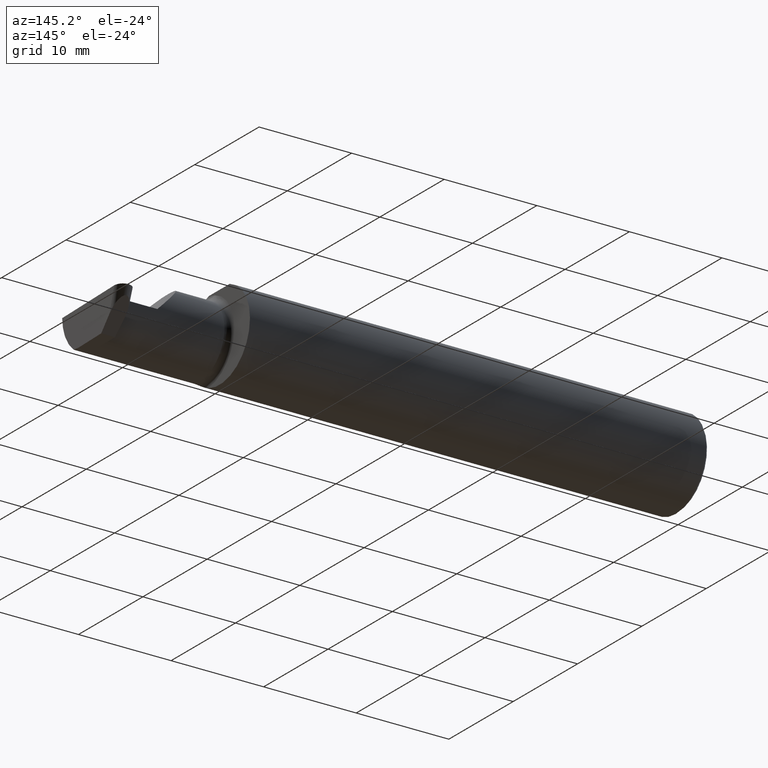
[diagram: clean part render]
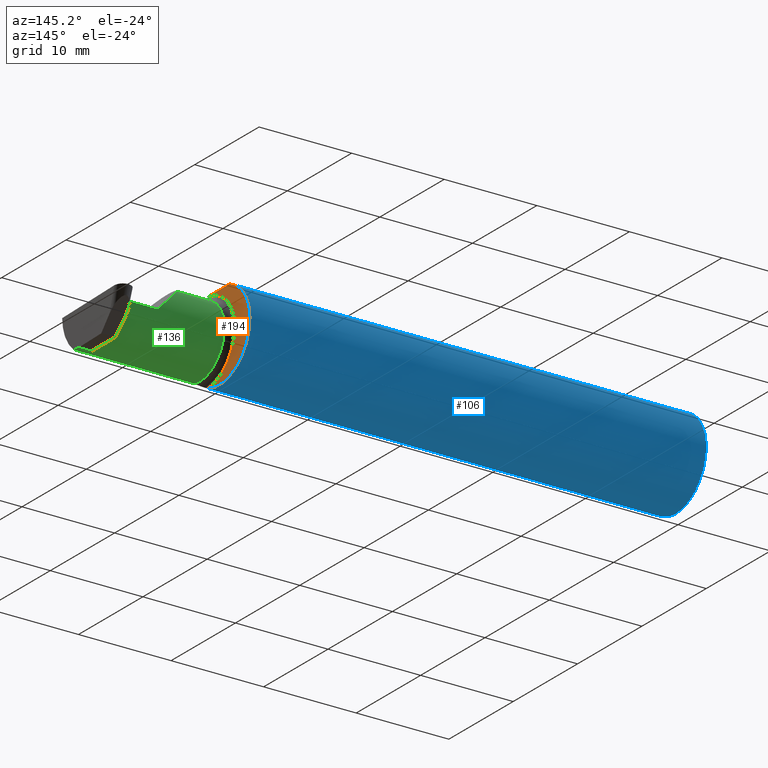
[diagram: same view with three faces highlighted in distinct colors, each labeled with its STEP entity id]
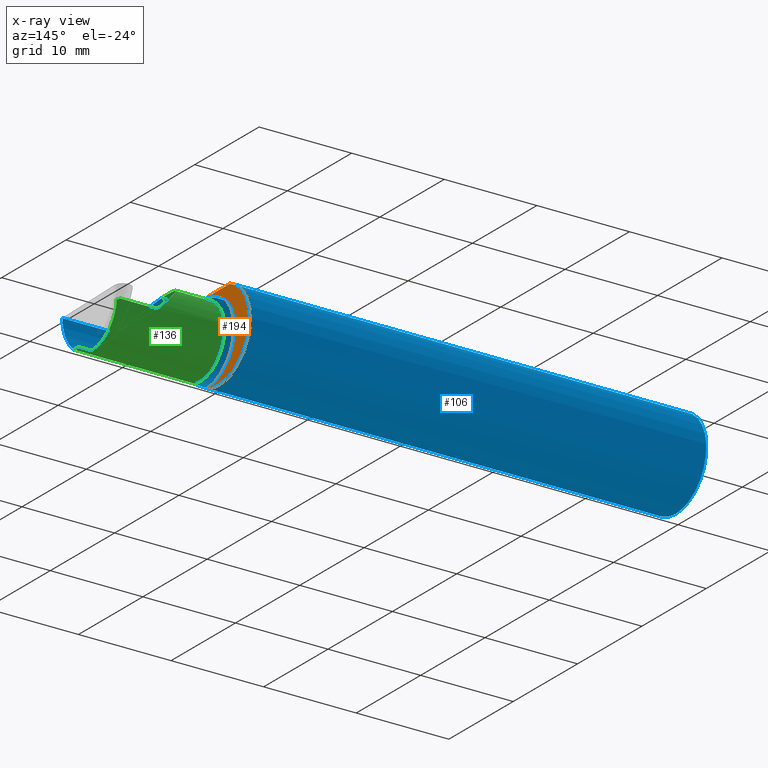
[diagram: x-ray of the same camera — body ghosted, the three highlighted faces saturated]
A machine part, auxiliary view with three faces highlighted in distinct colors.
The next image is the same camera in x-ray (body ghosted, the three faces saturated) — at least one of them is partly hidden behind the body in this view.
Their STEP definitions:

[orange] entity #194 — the highlighted planar face has unit normal (1, 0, 0).
#8 = AXIS2_PLACEMENT_3D ( 'NONE', #61, #68, #385 ) ;
#40 = DIRECTION ( 'NONE',  ( 1.000000000000000000, 3.558239494867688555E-17, 0.000000000000000000 ) ) ;
#47 = ORIENTED_EDGE ( 'NONE', *, *, #447, .T. ) ;
#61 = CARTESIAN_POINT ( 'NONE',  ( 1.949999999999999956, 0.1873499999999999055, 0.000000000000000000 ) ) ;
#64 = CARTESIAN_POINT ( 'NONE',  ( 1.949999999999999956, -0.06325108694718283020, 0.1763499999999999235 ) ) ;
#68 = DIRECTION ( 'NONE',  ( 1.000000000000000000, 3.558239494867688555E-17, 0.000000000000000000 ) ) ;
#76 = VERTEX_POINT ( 'NONE', #531 ) ;
#133 = AXIS2_PLACEMENT_3D ( 'NONE', #509, #225, #445 ) ;
#150 = CARTESIAN_POINT ( 'NONE',  ( 1.949999999999999956, 0.000000000000000000, 0.000000000000000000 ) ) ;
#153 = DIRECTION ( 'NONE',  ( 0.000000000000000000, 1.000000000000000000, 0.000000000000000000 ) ) ;
#168 = CIRCLE ( 'NONE', #481, 0.1873499999999999888 ) ;
#173 = VERTEX_POINT ( 'NONE', #64 ) ;
#194 = ADVANCED_FACE ( 'NONE', ( #549 ), #671, .T. ) ;
#195 = DIRECTION ( 'NONE',  ( -3.558239494867688555E-17, 1.000000000000000000, 0.000000000000000000 ) ) ;
#224 = DIRECTION ( 'NONE',  ( 1.000000000000000000, 3.558239494867688555E-17, 0.000000000000000000 ) ) ;
#225 = DIRECTION ( 'NONE',  ( -1.000000000000000000, -3.558239494867688555E-17, -0.000000000000000000 ) ) ;
#237 = AXIS2_PLACEMENT_3D ( 'NONE', #150, #40, #153 ) ;
#263 = EDGE_CURVE ( 'NONE', #76, #318, #446, .T. ) ;
#273 = VERTEX_POINT ( 'NONE', #451 ) ;
#297 = CARTESIAN_POINT ( 'NONE',  ( 1.949999999999999956, 0.1873499999999998222, 0.1763499999999999235 ) ) ;
#318 = VERTEX_POINT ( 'NONE', #571 ) ;
#347 = EDGE_CURVE ( 'NONE', #173, #273, #620, .T. ) ;
#385 = DIRECTION ( 'NONE',  ( -3.558239494867688555E-17, 1.000000000000000000, 0.000000000000000000 ) ) ;
#435 = VECTOR ( 'NONE', #195, 39.37007874015748143 ) ;
#445 = DIRECTION ( 'NONE',  ( 0.000000000000000000, -1.000000000000000000, 0.000000000000000000 ) ) ;
#446 = CIRCLE ( 'NONE', #133, 0.1749999999999999889 ) ;
#447 = EDGE_CURVE ( 'NONE', #173, #76, #551, .T. ) ;
#451 = CARTESIAN_POINT ( 'NONE',  ( 1.949999999999999956, 0.06325108694718235836, 0.1763499999999999235 ) ) ;
#462 = ORIENTED_EDGE ( 'NONE', *, *, #263, .T. ) ;
#481 = AXIS2_PLACEMENT_3D ( 'NONE', #497, #224, #701 ) ;
#497 = CARTESIAN_POINT ( 'NONE',  ( 1.949999999999999956, 0.000000000000000000, 0.000000000000000000 ) ) ;
#509 = CARTESIAN_POINT ( 'NONE',  ( 1.949999999999999956, -0.08335000000000000742, 0.000000000000000000 ) ) ;
#528 = EDGE_LOOP ( 'NONE', ( #666, #688, #47, #462 ) ) ;
#531 = CARTESIAN_POINT ( 'NONE',  ( 1.949999999999999956, -0.06851976604679065053, 0.1743704796142198643 ) ) ;
#549 = FACE_OUTER_BOUND ( 'NONE', #528, .T. ) ;
#551 = CIRCLE ( 'NONE', #237, 0.1873499999999999888 ) ;
#571 = CARTESIAN_POINT ( 'NONE',  ( 1.949999999999999956, -0.06851976604679065053, -0.1743704796142198643 ) ) ;
#620 = LINE ( 'NONE', #297, #435 ) ;
#660 = EDGE_CURVE ( 'NONE', #318, #273, #168, .T. ) ;
#666 = ORIENTED_EDGE ( 'NONE', *, *, #660, .T. ) ;
#671 = PLANE ( 'NONE',  #8 ) ;
#688 = ORIENTED_EDGE ( 'NONE', *, *, #347, .F. ) ;
#701 = DIRECTION ( 'NONE',  ( 0.000000000000000000, 1.000000000000000000, 0.000000000000000000 ) ) ;

[blue] entity #106 — the highlighted cylindrical surface (partial cylindrical patch) has radius 4.7587 mm, axis along (-1, -0, -0).
#7 = ORIENTED_EDGE ( 'NONE', *, *, #396, .T. ) ;
#22 = ORIENTED_EDGE ( 'NONE', *, *, #447, .F. ) ;
#35 = CARTESIAN_POINT ( 'NONE',  ( 0.000000000000000000, 0.06325108694718235836, 0.1763499999999999235 ) ) ;
#36 = CARTESIAN_POINT ( 'NONE',  ( 1.972161949849307927, -0.1172600179964061184, 0.1461167706989260351 ) ) ;
#37 = CARTESIAN_POINT ( 'NONE',  ( 2.260000000000000231, -0.1873499999999999888, 2.939152317953647352E-17 ) ) ;
#38 = CARTESIAN_POINT ( 'NONE',  ( 1.950353553376444671, -0.07868116735658677030, 0.1701139256562800572 ) ) ;
#40 = DIRECTION ( 'NONE',  ( 1.000000000000000000, 3.558239494867688555E-17, 0.000000000000000000 ) ) ;
#42 = ORIENTED_EDGE ( 'NONE', *, *, #580, .F. ) ;
#54 = EDGE_CURVE ( 'NONE', #441, #572, #350, .T. ) ;
#62 = VERTEX_POINT ( 'NONE', #489 ) ;
#64 = CARTESIAN_POINT ( 'NONE',  ( 1.949999999999999956, -0.06325108694718283020, 0.1763499999999999235 ) ) ;
#74 = EDGE_CURVE ( 'NONE', #76, #550, #603, .T. ) ;
#76 = VERTEX_POINT ( 'NONE', #531 ) ;
#83 = ORIENTED_EDGE ( 'NONE', *, *, #490, .F. ) ;
#91 = CARTESIAN_POINT ( 'NONE',  ( 2.202422719999999945, -0.1172600179964006090, -0.1461167706989303927 ) ) ;
#92 = CARTESIAN_POINT ( 'NONE',  ( 0.000000000000000000, 0.000000000000000000, 0.000000000000000000 ) ) ;
#102 = CARTESIAN_POINT ( 'NONE',  ( 1.952960551809340917, -0.09317341542745735672, -0.1626248379125197208 ) ) ;
#103 = DIRECTION ( 'NONE',  ( 0.000000000000000000, 0.000000000000000000, 1.000000000000000000 ) ) ;
#106 = ADVANCED_FACE ( 'NONE', ( #432 ), #475, .T. ) ;
#107 = LINE ( 'NONE', #661, #315 ) ;
#112 = VECTOR ( 'NONE', #541, 39.37007874015748143 ) ;
#116 = CARTESIAN_POINT ( 'NONE',  ( 2.487246082891137355, -0.1873500000000000165, -0.05781030015605123640 ) ) ;
#121 = VERTEX_POINT ( 'NONE', #200 ) ;
#127 = DIRECTION ( 'NONE',  ( 0.000000000000000000, 0.000000000000000000, -1.000000000000000000 ) ) ;
#140 = CARTESIAN_POINT ( 'NONE',  ( 0.009999999999999346217, -0.06325108694718235836, 0.1763499999999999235 ) ) ;
#143 = VECTOR ( 'NONE', #418, 39.37007874015748143 ) ;
#150 = CARTESIAN_POINT ( 'NONE',  ( 1.949999999999999956, 0.000000000000000000, 0.000000000000000000 ) ) ;
#152 = ORIENTED_EDGE ( 'NONE', *, *, #74, .F. ) ;
#153 = DIRECTION ( 'NONE',  ( 0.000000000000000000, 1.000000000000000000, 0.000000000000000000 ) ) ;
#163 = VERTEX_POINT ( 'NONE', #306 ) ;
#164 = CARTESIAN_POINT ( 'NONE',  ( 2.488151344270815191, -0.1172600179964006090, -0.1461167706989303927 ) ) ;
#168 = CIRCLE ( 'NONE', #481, 0.1873499999999999888 ) ;
#173 = VERTEX_POINT ( 'NONE', #64 ) ;
#174 = DIRECTION ( 'NONE',  ( 1.000000000000000000, 0.000000000000000000, 0.000000000000000000 ) ) ;
#176 = B_SPLINE_CURVE_WITH_KNOTS ( 'NONE', 3,
 ( #691, #197, #372, #643, #250, #311, #361, #102, #593, #365, #260, #199 ),
 .UNSPECIFIED., .F., .F.,
 ( 4, 2, 2, 2, 2, 4 ),
 ( 1.967976973726874814E-07, 0.0002120314145722334794, 0.0004238660314470942339, 0.0008475352651968040335, 0.001271204498946513833, 0.001694873732696223524 ),
 .UNSPECIFIED. ) ;
#179 = EDGE_CURVE ( 'NONE', #441, #173, #107, .T. ) ;
#197 = CARTESIAN_POINT ( 'NONE',  ( 1.972174967710399685, -0.1172600179964005812, -0.1461167706989304482 ) ) ;
#199 = CARTESIAN_POINT ( 'NONE',  ( 1.949999999999999956, -0.06851976604679065053, -0.1743704796142198643 ) ) ;
#200 = CARTESIAN_POINT ( 'NONE',  ( 2.260000000000000231, -0.1873499999999999888, 2.939152317953647352E-17 ) ) ;
#203 = LINE ( 'NONE', #91, #293 ) ;
#206 = CARTESIAN_POINT ( 'NONE',  ( 2.150065971957464850, -0.1623470442677540371, 0.1099340280425340488 ) ) ;
#208 = ORIENTED_EDGE ( 'NONE', *, *, #54, .T. ) ;
#214 = CARTESIAN_POINT ( 'NONE',  ( 1.965004157323697376, -0.1137044537483316159, 0.1489098419202428691 ) ) ;
#215 = EDGE_LOOP ( 'NONE', ( #42, #700, #614, #230, #627, #152, #22, #484, #208, #7, #83, #371, #419 ) ) ;
#221 = VERTEX_POINT ( 'NONE', #282 ) ;
#224 = DIRECTION ( 'NONE',  ( 1.000000000000000000, 3.558239494867688555E-17, 0.000000000000000000 ) ) ;
#230 = ORIENTED_EDGE ( 'NONE', *, *, #545, .T. ) ;
#237 = AXIS2_PLACEMENT_3D ( 'NONE', #150, #40, #153 ) ;
#250 = CARTESIAN_POINT ( 'NONE',  ( 1.963203859946833552, -0.1120371980050636901, -0.1501764597936560142 ) ) ;
#253 = CARTESIAN_POINT ( 'NONE',  ( 2.113883229301068312, -0.1172600179964003175, 0.1461167706989304760 ) ) ;
#260 = CARTESIAN_POINT ( 'NONE',  ( 1.949999999999999512, -0.07368234487347190276, -0.1723418180300748115 ) ) ;
#262 = CARTESIAN_POINT ( 'NONE',  ( 1.974999999999999867, -0.1172600179964006506, 0.1461167706989304205 ) ) ;
#273 = VERTEX_POINT ( 'NONE', #451 ) ;
#274 = CARTESIAN_POINT ( 'NONE',  ( 2.487208827712860337, -0.1623470442677540926, -0.1099340280425339100 ) ) ;
#277 = LINE ( 'NONE', #380, #401 ) ;
#282 = CARTESIAN_POINT ( 'NONE',  ( 1.974999999999999867, -0.1172600179964006090, -0.1461167706989303927 ) ) ;
#293 = VECTOR ( 'NONE', #427, 39.37007874015748143 ) ;
#306 = CARTESIAN_POINT ( 'NONE',  ( 2.488151344270815191, -0.1172600179964006090, -0.1461167706989303927 ) ) ;
#311 = CARTESIAN_POINT ( 'NONE',  ( 1.958439486659306228, -0.1064616213911156600, -0.1542305641651501857 ) ) ;
#312 = CARTESIAN_POINT ( 'NONE',  ( 1.949999999999999956, -0.07367581953296704900, 0.1723443821957854338 ) ) ;
#315 = VECTOR ( 'NONE', #330, 39.37007874015748143 ) ;
#318 = VERTEX_POINT ( 'NONE', #571 ) ;
#330 = DIRECTION ( 'NONE',  ( 1.000000000000000000, 0.000000000000000000, 0.000000000000000000 ) ) ;
#350 = CIRCLE ( 'NONE', #705, 0.1873499999999999888 ) ;
#355 =( BOUNDED_CURVE ( )  B_SPLINE_CURVE ( 3, ( #164, #274, #116, #706 ),
 .UNSPECIFIED., .F., .T. ) 
 B_SPLINE_CURVE_WITH_KNOTS ( ( 4, 4 ),
 ( 5.852427379562161747, 6.746954780470609592 ),
 .UNSPECIFIED. ) 
 CURVE ( )  GEOMETRIC_REPRESENTATION_ITEM ( )  RATIONAL_B_SPLINE_CURVE ( ( 1.000000000000000000, 0.9344226172588802060, 0.9344226172588802060, 1.000000000000000000 ) ) 
 REPRESENTATION_ITEM ( '' )  );
#361 = CARTESIAN_POINT ( 'NONE',  ( 1.956304331342286984, -0.1022198306720689814, -0.1570962426853818594 ) ) ;
#365 = CARTESIAN_POINT ( 'NONE',  ( 1.950358271039143832, -0.07873626113568077400, -0.1700887912276895508 ) ) ;
#369 = CARTESIAN_POINT ( 'NONE',  ( 2.202189699843948301, -0.1873500000000000443, 0.05781030015605120170 ) ) ;
#371 = ORIENTED_EDGE ( 'NONE', *, *, #660, .F. ) ;
#372 = CARTESIAN_POINT ( 'NONE',  ( 1.969511795768554174, -0.1163687266324233971, -0.1468371510166789906 ) ) ;
#374 = DIRECTION ( 'NONE',  ( -1.000000000000000000, -0.000000000000000000, -0.000000000000000000 ) ) ;
#376 = LINE ( 'NONE', #35, #112 ) ;
#378 = CARTESIAN_POINT ( 'NONE',  ( 1.958475602106621194, -0.1064978748893405658, 0.1542035505680384166 ) ) ;
#380 = CARTESIAN_POINT ( 'NONE',  ( 2.202422719999999945, -0.1172600179964006090, 0.1461167706989303927 ) ) ;
#396 = EDGE_CURVE ( 'NONE', #572, #62, #704, .T. ) ;
#400 = AXIS2_PLACEMENT_3D ( 'NONE', #456, #174, #127 ) ;
#401 = VECTOR ( 'NONE', #609, 39.37007874015748143 ) ;
#418 = DIRECTION ( 'NONE',  ( -1.000000000000000000, -0.000000000000000000, -0.000000000000000000 ) ) ;
#419 = ORIENTED_EDGE ( 'NONE', *, *, #526, .F. ) ;
#424 = CARTESIAN_POINT ( 'NONE',  ( 1.949999999999999956, -0.06851976604679065053, 0.1743704796142198643 ) ) ;
#427 = DIRECTION ( 'NONE',  ( -1.000000000000000000, -3.558239494867688555E-17, -0.000000000000000000 ) ) ;
#428 = DIRECTION ( 'NONE',  ( 1.000000000000000000, 0.000000000000000000, 0.000000000000000000 ) ) ;
#432 = FACE_OUTER_BOUND ( 'NONE', #215, .T. ) ;
#438 = EDGE_CURVE ( 'NONE', #567, #121, #463, .T. ) ;
#441 = VERTEX_POINT ( 'NONE', #140 ) ;
#447 = EDGE_CURVE ( 'NONE', #173, #76, #551, .T. ) ;
#451 = CARTESIAN_POINT ( 'NONE',  ( 1.949999999999999956, 0.06325108694718235836, 0.1763499999999999235 ) ) ;
#456 = CARTESIAN_POINT ( 'NONE',  ( 0.009999999999999346217, 0.000000000000000000, 0.000000000000000000 ) ) ;
#463 = LINE ( 'NONE', #679, #143 ) ;
#474 = CARTESIAN_POINT ( 'NONE',  ( 2.488255780514392335, -0.1873499999999999888, 0.000000000000000000 ) ) ;
#475 = CYLINDRICAL_SURFACE ( 'NONE', #628, 0.1873499999999999888 ) ;
#477 = CARTESIAN_POINT ( 'NONE',  ( 1.969481469043492528, -0.1163560528186165510, 0.1468472430636323656 ) ) ;
#481 = AXIS2_PLACEMENT_3D ( 'NONE', #497, #224, #701 ) ;
#484 = ORIENTED_EDGE ( 'NONE', *, *, #179, .F. ) ;
#489 = CARTESIAN_POINT ( 'NONE',  ( 0.009999999999999346217, 0.06325108694718235836, 0.1763499999999999235 ) ) ;
#490 = EDGE_CURVE ( 'NONE', #273, #62, #376, .T. ) ;
#497 = CARTESIAN_POINT ( 'NONE',  ( 1.949999999999999956, 0.000000000000000000, 0.000000000000000000 ) ) ;
#526 = EDGE_CURVE ( 'NONE', #221, #318, #176, .T. ) ;
#531 = CARTESIAN_POINT ( 'NONE',  ( 1.949999999999999956, -0.06851976604679065053, 0.1743704796142198643 ) ) ;
#541 = DIRECTION ( 'NONE',  ( -1.000000000000000000, -0.000000000000000000, -0.000000000000000000 ) ) ;
#542 = DIRECTION ( 'NONE',  ( 0.000000000000000000, 0.000000000000000000, -1.000000000000000000 ) ) ;
#545 = EDGE_CURVE ( 'NONE', #121, #681, #625, .T. ) ;
#548 = CARTESIAN_POINT ( 'NONE',  ( 2.113883229301068312, -0.1172600179964003175, 0.1461167706989304760 ) ) ;
#550 = VERTEX_POINT ( 'NONE', #647 ) ;
#551 = CIRCLE ( 'NONE', #237, 0.1873499999999999888 ) ;
#567 = VERTEX_POINT ( 'NONE', #474 ) ;
#571 = CARTESIAN_POINT ( 'NONE',  ( 1.949999999999999956, -0.06851976604679065053, -0.1743704796142198643 ) ) ;
#572 = VERTEX_POINT ( 'NONE', #690 ) ;
#580 = EDGE_CURVE ( 'NONE', #163, #221, #203, .T. ) ;
#584 = CARTESIAN_POINT ( 'NONE',  ( 1.956287624083519416, -0.1021858045380144991, 0.1571187174372875306 ) ) ;
#593 = CARTESIAN_POINT ( 'NONE',  ( 1.951843912362378086, -0.08846956905169081620, -0.1652353808078972919 ) ) ;
#594 = CARTESIAN_POINT ( 'NONE',  ( 0.009999999999999346217, 0.000000000000000000, 0.000000000000000000 ) ) ;
#603 = B_SPLINE_CURVE_WITH_KNOTS ( 'NONE', 3,
 ( #424, #312, #38, #696, #641, #584, #378, #654, #214, #477, #36, #262 ),
 .UNSPECIFIED., .F., .F.,
 ( 4, 2, 2, 2, 2, 4 ),
 ( 4.423516731080767705E-05, 0.0004615475116586703792, 0.0008788598560065330814, 0.001296172200354395784, 0.001504828372528326267, 0.001713484544702256968 ),
 .UNSPECIFIED. ) ;
#609 = DIRECTION ( 'NONE',  ( 1.000000000000000000, 3.558239494867688555E-17, 0.000000000000000000 ) ) ;
#614 = ORIENTED_EDGE ( 'NONE', *, *, #438, .T. ) ;
#625 =( BOUNDED_CURVE ( )  B_SPLINE_CURVE ( 3, ( #37, #369, #206, #253 ),
 .UNSPECIFIED., .F., .T. ) 
 B_SPLINE_CURVE_WITH_KNOTS ( ( 4, 4 ),
 ( 4.712388980384688786, 5.606916381293139295 ),
 .UNSPECIFIED. ) 
 CURVE ( )  GEOMETRIC_REPRESENTATION_ITEM ( )  RATIONAL_B_SPLINE_CURVE ( ( 1.000000000000000000, 0.9344226172588797619, 0.9344226172588797619, 1.000000000000000000 ) ) 
 REPRESENTATION_ITEM ( '' )  );
#627 = ORIENTED_EDGE ( 'NONE', *, *, #648, .F. ) ;
#628 = AXIS2_PLACEMENT_3D ( 'NONE', #92, #374, #103 ) ;
#641 = CARTESIAN_POINT ( 'NONE',  ( 1.952945243422982369, -0.09312071749437422774, 0.1626553472577906556 ) ) ;
#643 = CARTESIAN_POINT ( 'NONE',  ( 1.965028532764137914, -0.1137241120808233780, -0.1488947809299405178 ) ) ;
#646 = EDGE_CURVE ( 'NONE', #163, #567, #355, .T. ) ;
#647 = CARTESIAN_POINT ( 'NONE',  ( 1.974999999999999867, -0.1172600179964006506, 0.1461167706989304205 ) ) ;
#648 = EDGE_CURVE ( 'NONE', #550, #681, #277, .T. ) ;
#654 = CARTESIAN_POINT ( 'NONE',  ( 1.963163223656403389, -0.1119926267047277602, 0.1502091925606062750 ) ) ;
#660 = EDGE_CURVE ( 'NONE', #318, #273, #168, .T. ) ;
#661 = CARTESIAN_POINT ( 'NONE',  ( 0.000000000000000000, -0.06325108694718235836, 0.1763499999999999235 ) ) ;
#679 = CARTESIAN_POINT ( 'NONE',  ( 3.749399456654646757E-32, -0.1873499999999999610, 3.061616997868383634E-16 ) ) ;
#681 = VERTEX_POINT ( 'NONE', #548 ) ;
#690 = CARTESIAN_POINT ( 'NONE',  ( 0.009999999999999346217, 0.000000000000000000, -0.1873499999999999888 ) ) ;
#691 = CARTESIAN_POINT ( 'NONE',  ( 1.974999999999999867, -0.1172600179964006090, -0.1461167706989303927 ) ) ;
#696 = CARTESIAN_POINT ( 'NONE',  ( 1.951829077486400443, -0.08839624499054650475, 0.1652742498708037744 ) ) ;
#700 = ORIENTED_EDGE ( 'NONE', *, *, #646, .T. ) ;
#701 = DIRECTION ( 'NONE',  ( 0.000000000000000000, 1.000000000000000000, 0.000000000000000000 ) ) ;
#704 = CIRCLE ( 'NONE', #400, 0.1873499999999999888 ) ;
#705 = AXIS2_PLACEMENT_3D ( 'NONE', #594, #428, #542 ) ;
#706 = CARTESIAN_POINT ( 'NONE',  ( 2.488255780514392335, -0.1873499999999999888, 0.000000000000000000 ) ) ;

[green] entity #136 — the highlighted cylindrical surface (partial cylindrical patch) has radius 3.81 mm, axis along (-1, -0, -0).
#2 = CARTESIAN_POINT ( 'NONE',  ( 2.423538215936590134, 0.06658908270190941336, -0.003489949670254849888 ) ) ;
#3 = CARTESIAN_POINT ( 'NONE',  ( 2.090221225029926355, -0.01530148607434139371, 0.1697787749700724880 ) ) ;
#4 = ORIENTED_EDGE ( 'NONE', *, *, #648, .T. ) ;
#5 = CARTESIAN_POINT ( 'NONE',  ( 2.733184360054361939, -0.08335000000000006293, -0.1500000000000000500 ) ) ;
#13 =( BOUNDED_CURVE ( )  B_SPLINE_CURVE ( 3, ( #332, #488, #552, #105 ),
 .UNSPECIFIED., .F., .T. ) 
 B_SPLINE_CURVE_WITH_KNOTS ( ( 4, 4 ),
 ( 3.159045946109734437, 4.694935687864694174 ),
 .UNSPECIFIED. ) 
 CURVE ( )  GEOMETRIC_REPRESENTATION_ITEM ( )  RATIONAL_B_SPLINE_CURVE ( ( 1.000000000000000000, 0.8128932002257790446, 0.8128932002257790446, 1.000000000000000000 ) ) 
 REPRESENTATION_ITEM ( '' )  );
#16 = ORIENTED_EDGE ( 'NONE', *, *, #283, .F. ) ;
#30 = CARTESIAN_POINT ( 'NONE',  ( 2.489267684857003893, -0.08335000000000006293, -0.1500000000000000500 ) ) ;
#32 = AXIS2_PLACEMENT_3D ( 'NONE', #461, #626, #520 ) ;
#46 = CARTESIAN_POINT ( 'NONE',  ( 1.949999999999998845, 0.06655862405285710437, -0.005234924505583847532 ) ) ;
#63 = EDGE_CURVE ( 'NONE', #156, #270, #97, .T. ) ;
#91 = CARTESIAN_POINT ( 'NONE',  ( 2.202422719999999945, -0.1172600179964006090, -0.1461167706989303927 ) ) ;
#97 = LINE ( 'NONE', #46, #227 ) ;
#105 = CARTESIAN_POINT ( 'NONE',  ( 2.432814406597916257, 0.06655862405284602989, -0.005234924505382013322 ) ) ;
#113 =( BOUNDED_CURVE ( )  B_SPLINE_CURVE ( 3, ( #498, #3, #556, #388 ),
 .UNSPECIFIED., .F., .T. ) 
 B_SPLINE_CURVE_WITH_KNOTS ( ( 4, 4 ),
 ( 6.055147272130144920, 7.853981633974482790 ),
 .UNSPECIFIED. ) 
 CURVE ( )  GEOMETRIC_REPRESENTATION_ITEM ( )  RATIONAL_B_SPLINE_CURVE ( ( 1.000000000000000000, 0.7480442670255273985, 0.7480442670255273985, 1.000000000000000000 ) ) 
 REPRESENTATION_ITEM ( '' )  );
#122 = AXIS2_PLACEMENT_3D ( 'NONE', #538, #205, #430 ) ;
#136 = ADVANCED_FACE ( 'NONE', ( #370 ), #587, .T. ) ;
#139 = ORIENTED_EDGE ( 'NONE', *, *, #252, .T. ) ;
#154 = CARTESIAN_POINT ( 'NONE',  ( 1.949999999999999956, 0.06665000000000001479, 6.735557395310446214E-17 ) ) ;
#156 = VERTEX_POINT ( 'NONE', #309 ) ;
#157 = EDGE_CURVE ( 'NONE', #535, #218, #483, .T. ) ;
#161 = DIRECTION ( 'NONE',  ( -1.000000000000000000, -0.000000000000000000, -0.000000000000000000 ) ) ;
#163 = VERTEX_POINT ( 'NONE', #306 ) ;
#185 =( BOUNDED_CURVE ( )  B_SPLINE_CURVE ( 3, ( #512, #631, #674, #30 ),
 .UNSPECIFIED., .F., .F. ) 
 B_SPLINE_CURVE_WITH_KNOTS ( ( 4, 4 ),
 ( 0.8789888184544304428, 1.107026853503873642 ),
 .UNSPECIFIED. ) 
 CURVE ( )  GEOMETRIC_REPRESENTATION_ITEM ( )  RATIONAL_B_SPLINE_CURVE ( ( 1.000000000000000000, 0.9956712472009929815, 0.9956712472009929815, 1.000000000000000000 ) ) 
 REPRESENTATION_ITEM ( '' )  );
#193 = VECTOR ( 'NONE', #320, 39.37007874015748143 ) ;
#203 = LINE ( 'NONE', #91, #293 ) ;
#205 = DIRECTION ( 'NONE',  ( -1.000000000000000000, -3.558239494867688555E-17, -0.000000000000000000 ) ) ;
#218 = VERTEX_POINT ( 'NONE', #381 ) ;
#221 = VERTEX_POINT ( 'NONE', #282 ) ;
#227 = VECTOR ( 'NONE', #316, 39.37007874015748143 ) ;
#232 = VERTEX_POINT ( 'NONE', #336 ) ;
#252 = EDGE_CURVE ( 'NONE', #681, #535, #113, .T. ) ;
#258 = VECTOR ( 'NONE', #161, 39.37007874015748143 ) ;
#270 = VERTEX_POINT ( 'NONE', #391 ) ;
#277 = LINE ( 'NONE', #380, #401 ) ;
#282 = CARTESIAN_POINT ( 'NONE',  ( 1.974999999999999867, -0.1172600179964006090, -0.1461167706989303927 ) ) ;
#283 = EDGE_CURVE ( 'NONE', #163, #604, #185, .T. ) ;
#293 = VECTOR ( 'NONE', #427, 39.37007874015748143 ) ;
#306 = CARTESIAN_POINT ( 'NONE',  ( 2.488151344270815191, -0.1172600179964006090, -0.1461167706989303927 ) ) ;
#309 = CARTESIAN_POINT ( 'NONE',  ( 2.432814406597916257, 0.06655862405284602989, -0.005234924505382013322 ) ) ;
#316 = DIRECTION ( 'NONE',  ( -1.000000000000000000, -3.558239494867688555E-17, -0.000000000000000000 ) ) ;
#319 = CARTESIAN_POINT ( 'NONE',  ( 2.260000000000000231, 0.06665000000000001479, 6.735557395310446214E-17 ) ) ;
#320 = DIRECTION ( 'NONE',  ( 1.000000000000000000, 3.558239494867688555E-17, 0.000000000000000000 ) ) ;
#322 = CARTESIAN_POINT ( 'NONE',  ( 2.423507757287544528, 0.06655862405286415429, -0.005234924505382275266 ) ) ;
#331 = ORIENTED_EDGE ( 'NONE', *, *, #689, .F. ) ;
#332 = CARTESIAN_POINT ( 'NONE',  ( 2.435477556824171330, -0.08334999999999999354, -0.1500000000000000500 ) ) ;
#336 = CARTESIAN_POINT ( 'NONE',  ( 2.435477556824171330, -0.08334999999999999354, -0.1500000000000000500 ) ) ;
#338 = CIRCLE ( 'NONE', #32, 0.1500000000000000500 ) ;
#339 = EDGE_CURVE ( 'NONE', #550, #221, #338, .T. ) ;
#367 = ORIENTED_EDGE ( 'NONE', *, *, #339, .F. ) ;
#370 = FACE_OUTER_BOUND ( 'NONE', #379, .T. ) ;
#379 = EDGE_LOOP ( 'NONE', ( #703, #367, #4, #139, #560, #487, #546, #502, #331, #16 ) ) ;
#380 = CARTESIAN_POINT ( 'NONE',  ( 2.202422719999999945, -0.1172600179964006090, 0.1461167706989303927 ) ) ;
#381 = CARTESIAN_POINT ( 'NONE',  ( 2.423599133234680458, 0.06664999999999991764, 0.000000000000000000 ) ) ;
#387 = LINE ( 'NONE', #5, #258 ) ;
#388 = CARTESIAN_POINT ( 'NONE',  ( 2.260000000000000231, 0.06665000000000001479, 6.735557395310446214E-17 ) ) ;
#390 = CARTESIAN_POINT ( 'NONE',  ( 2.489267684857003893, -0.08335000000000006293, -0.1500000000000000500 ) ) ;
#391 = CARTESIAN_POINT ( 'NONE',  ( 2.423507757287544528, 0.06655862405286415429, -0.005234924505382275266 ) ) ;
#401 = VECTOR ( 'NONE', #609, 39.37007874015748143 ) ;
#427 = DIRECTION ( 'NONE',  ( -1.000000000000000000, -3.558239494867688555E-17, -0.000000000000000000 ) ) ;
#430 = DIRECTION ( 'NONE',  ( 0.000000000000000000, -1.000000000000000000, 0.000000000000000000 ) ) ;
#450 = B_SPLINE_CURVE_WITH_KNOTS ( 'NONE', 3,
 ( #322, #2, #655, #606 ),
 .UNSPECIFIED., .F., .F.,
 ( 4, 4 ),
 ( 0.000000000000000000, 1.000000000000000000 ),
 .UNSPECIFIED. ) ;
#461 = CARTESIAN_POINT ( 'NONE',  ( 1.974999999999999867, -0.08335000000000000742, 0.000000000000000000 ) ) ;
#483 = LINE ( 'NONE', #154, #193 ) ;
#487 = ORIENTED_EDGE ( 'NONE', *, *, #669, .F. ) ;
#488 = CARTESIAN_POINT ( 'NONE',  ( 2.435450603568175776, 0.002105059811798098198, -0.1500000000000000777 ) ) ;
#498 = CARTESIAN_POINT ( 'NONE',  ( 2.113883229301068312, -0.1172600179964003175, 0.1461167706989304760 ) ) ;
#502 = ORIENTED_EDGE ( 'NONE', *, *, #658, .F. ) ;
#512 = CARTESIAN_POINT ( 'NONE',  ( 2.488151344270815191, -0.1172600179964006090, -0.1461167706989303927 ) ) ;
#520 = DIRECTION ( 'NONE',  ( 0.000000000000000000, -1.000000000000000000, 0.000000000000000000 ) ) ;
#535 = VERTEX_POINT ( 'NONE', #319 ) ;
#538 = CARTESIAN_POINT ( 'NONE',  ( 1.949999999999999956, -0.08335000000000000742, 0.000000000000000000 ) ) ;
#546 = ORIENTED_EDGE ( 'NONE', *, *, #63, .F. ) ;
#548 = CARTESIAN_POINT ( 'NONE',  ( 2.113883229301068312, -0.1172600179964003175, 0.1461167706989304760 ) ) ;
#550 = VERTEX_POINT ( 'NONE', #647 ) ;
#552 = CARTESIAN_POINT ( 'NONE',  ( 2.434358557599728634, 0.06357628547474597491, -0.09063792740366179157 ) ) ;
#556 = CARTESIAN_POINT ( 'NONE',  ( 2.155331797197863608, 0.06665000000000002867, 0.1046682028021359151 ) ) ;
#560 = ORIENTED_EDGE ( 'NONE', *, *, #157, .T. ) ;
#580 = EDGE_CURVE ( 'NONE', #163, #221, #203, .T. ) ;
#587 = CYLINDRICAL_SURFACE ( 'NONE', #122, 0.1500000000000000500 ) ;
#604 = VERTEX_POINT ( 'NONE', #390 ) ;
#606 = CARTESIAN_POINT ( 'NONE',  ( 2.423599133234680458, 0.06664999999999991764, 0.000000000000000000 ) ) ;
#609 = DIRECTION ( 'NONE',  ( 1.000000000000000000, 3.558239494867688555E-17, 0.000000000000000000 ) ) ;
#626 = DIRECTION ( 'NONE',  ( -1.000000000000000000, -3.558239494867688555E-17, -0.000000000000000000 ) ) ;
#631 = CARTESIAN_POINT ( 'NONE',  ( 2.488494925208532216, -0.1061291577212408327, -0.1486999626928446339 ) ) ;
#647 = CARTESIAN_POINT ( 'NONE',  ( 1.974999999999999867, -0.1172600179964006506, 0.1461167706989304205 ) ) ;
#648 = EDGE_CURVE ( 'NONE', #550, #681, #277, .T. ) ;
#655 = CARTESIAN_POINT ( 'NONE',  ( 2.423568674585635296, 0.06661954135095465857, -0.001744974835127424727 ) ) ;
#658 = EDGE_CURVE ( 'NONE', #232, #156, #13, .T. ) ;
#669 = EDGE_CURVE ( 'NONE', #270, #218, #450, .T. ) ;
#674 = CARTESIAN_POINT ( 'NONE',  ( 2.488868656527756240, -0.09477667630339416116, -0.1500000000000000222 ) ) ;
#681 = VERTEX_POINT ( 'NONE', #548 ) ;
#689 = EDGE_CURVE ( 'NONE', #604, #232, #387, .T. ) ;
#703 = ORIENTED_EDGE ( 'NONE', *, *, #580, .T. ) ;